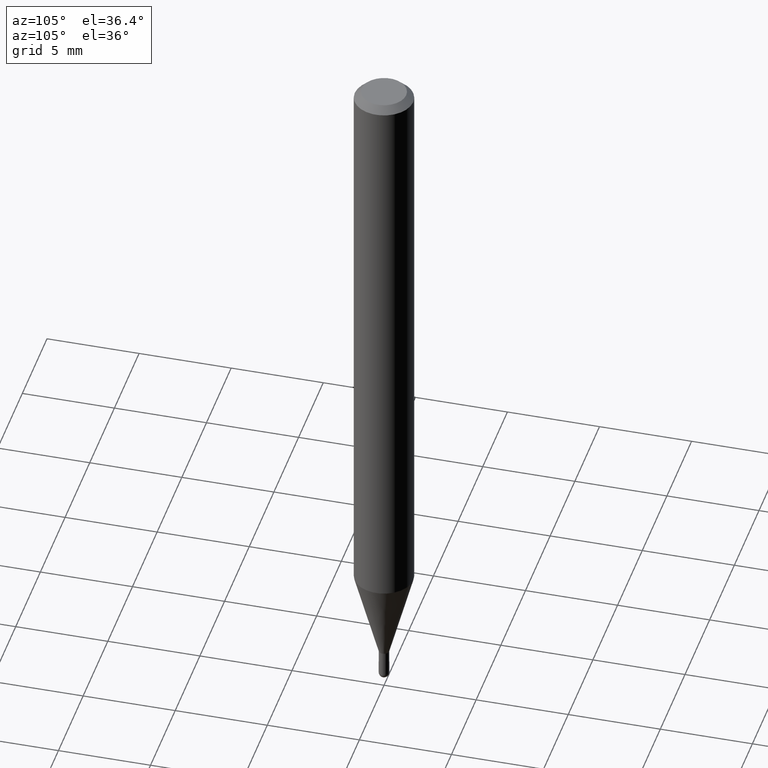
[diagram: clean part render]
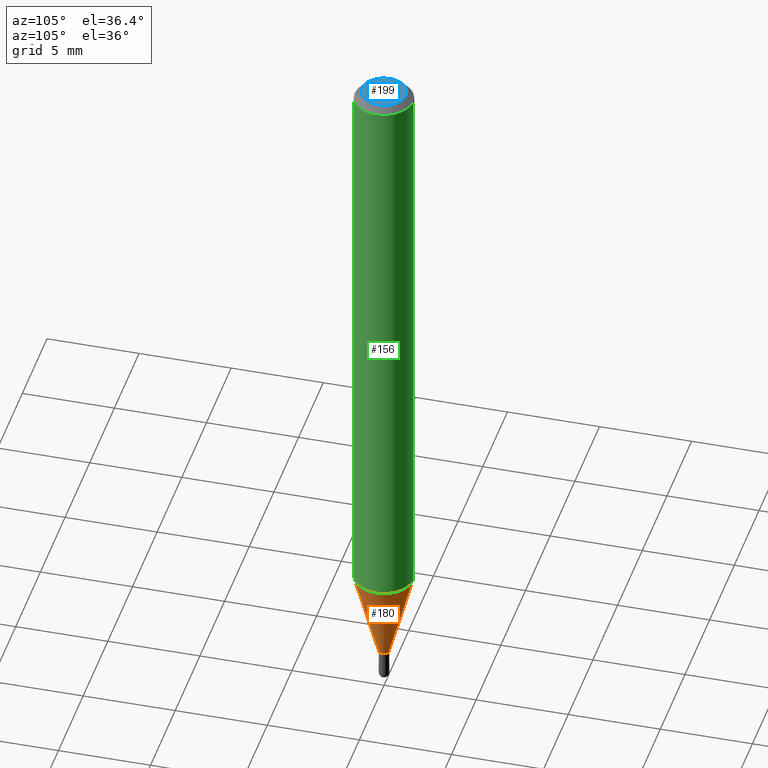
[diagram: same view with three faces highlighted in distinct colors, each labeled with its STEP entity id]
A machine part, auxiliary view with three faces highlighted in distinct colors.
Their STEP definitions:

[orange] entity #180 — the highlighted conical surface has half-angle 15 deg.
#31 = DIRECTION ( 'NONE',  ( -6.982962677686265922E-15, -1.000000000000000000, 0.000000000000000000 ) ) ;
#43 = DIRECTION ( 'NONE',  ( -6.982962677686265922E-15, -1.000000000000000000, 0.000000000000000000 ) ) ;
#51 = EDGE_CURVE ( 'NONE', #165, #355, #445, .T. ) ;
#64 = AXIS2_PLACEMENT_3D ( 'NONE', #466, #510, #31 ) ;
#68 = ORIENTED_EDGE ( 'NONE', *, *, #321, .F. ) ;
#70 = CARTESIAN_POINT ( 'NONE',  ( -7.681258945451523121E-17, -0.01100000000000520353, -1.434000000000000163 ) ) ;
#73 = AXIS2_PLACEMENT_3D ( 'NONE', #471, #390, #155 ) ;
#81 = DIRECTION ( 'NONE',  ( -2.445461482890762245E-29, 3.491491826217505762E-15, 1.000000000000000000 ) ) ;
#85 = EDGE_CURVE ( 'NONE', #91, #348, #420, .T. ) ;
#91 = VERTEX_POINT ( 'NONE', #70 ) ;
#139 = AXIS2_PLACEMENT_3D ( 'NONE', #344, #81, #43 ) ;
#155 = DIRECTION ( 'NONE',  ( -6.982962677686265922E-15, -1.000000000000000000, 4.370956789862821150E-15 ) ) ;
#164 = CARTESIAN_POINT ( 'NONE',  ( 7.815970093364746375E-17, 0.01099999999999519071, -1.434000000000000163 ) ) ;
#165 = VERTEX_POINT ( 'NONE', #414 ) ;
#180 = ADVANCED_FACE ( 'NONE', ( #187 ), #311, .T. ) ;
#187 = FACE_OUTER_BOUND ( 'NONE', #284, .T. ) ;
#192 = VECTOR ( 'NONE', #234, 39.37007874015748143 ) ;
#193 = LINE ( 'NONE', #164, #283 ) ;
#196 = CARTESIAN_POINT ( 'NONE',  ( 4.440892098500927901E-16, 0.06249999999999566319, -1.241799383410210122 ) ) ;
#228 = LINE ( 'NONE', #317, #192 ) ;
#234 = DIRECTION ( 'NONE',  ( -1.807323732225379838E-15, -0.2588190451025252914, 0.9659258262890670910 ) ) ;
#237 = ORIENTED_EDGE ( 'NONE', *, *, #85, .T. ) ;
#283 = VECTOR ( 'NONE', #349, 39.37007874015748854 ) ;
#284 = EDGE_LOOP ( 'NONE', ( #237, #396, #485, #68 ) ) ;
#311 = CONICAL_SURFACE ( 'NONE', #139, 0.01100000000000019712, 0.2617993877991576235 ) ;
#315 = EDGE_CURVE ( 'NONE', #348, #355, #193, .T. ) ;
#317 = CARTESIAN_POINT ( 'NONE',  ( -7.681258945451523121E-17, -0.01100000000000520353, -1.434000000000000163 ) ) ;
#321 = EDGE_CURVE ( 'NONE', #91, #165, #228, .T. ) ;
#344 = CARTESIAN_POINT ( 'NONE',  ( 3.506791766465352744E-29, -5.006799278795903380E-15, -1.434000000000000163 ) ) ;
#348 = VERTEX_POINT ( 'NONE', #439 ) ;
#349 = DIRECTION ( 'NONE',  ( 1.839019923739650408E-15, 0.2588190451025320082, 0.9659258262890650926 ) ) ;
#355 = VERTEX_POINT ( 'NONE', #196 ) ;
#390 = DIRECTION ( 'NONE',  ( -2.445461482890762245E-29, 3.491491826217505762E-15, 1.000000000000000000 ) ) ;
#396 = ORIENTED_EDGE ( 'NONE', *, *, #315, .T. ) ;
#414 = CARTESIAN_POINT ( 'NONE',  ( -4.364351673553612983E-16, -0.06250000000000434375, -1.241799383410209678 ) ) ;
#420 = CIRCLE ( 'NONE', #64, 0.01100000000000019712 ) ;
#439 = CARTESIAN_POINT ( 'NONE',  ( 2.611244553918704289E-16, 0.01099999999999519071, -1.434000000000000163 ) ) ;
#445 = CIRCLE ( 'NONE', #73, 0.06250000000000000000 ) ;
#466 = CARTESIAN_POINT ( 'NONE',  ( 3.506791766465352744E-29, -5.006799278795903380E-15, -1.434000000000000163 ) ) ;
#471 = CARTESIAN_POINT ( 'NONE',  ( 3.036772561607166084E-29, -4.335732396978686706E-15, -1.241799383410209900 ) ) ;
#485 = ORIENTED_EDGE ( 'NONE', *, *, #51, .F. ) ;
#510 = DIRECTION ( 'NONE',  ( -2.445461482890762245E-29, 3.491491826217505762E-15, 1.000000000000000000 ) ) ;

[blue] entity #199 — the highlighted planar face has unit normal (0, -0, -1).
#14 = ORIENTED_EDGE ( 'NONE', *, *, #27, .T. ) ;
#27 = EDGE_CURVE ( 'NONE', #274, #248, #282, .T. ) ;
#75 = DIRECTION ( 'NONE',  ( -2.445461482890762245E-29, 3.491491826217505762E-15, 1.000000000000000000 ) ) ;
#93 = EDGE_CURVE ( 'NONE', #248, #274, #297, .T. ) ;
#128 = CARTESIAN_POINT ( 'NONE',  ( 1.601770812881372317E-45, -2.286917925216366942E-31, -6.549973590211409357E-17 ) ) ;
#130 = ORIENTED_EDGE ( 'NONE', *, *, #93, .T. ) ;
#137 = AXIS2_PLACEMENT_3D ( 'NONE', #128, #205, #290 ) ;
#149 = EDGE_LOOP ( 'NONE', ( #14, #130 ) ) ;
#157 = CARTESIAN_POINT ( 'NONE',  ( 3.840629472727447874E-16, 0.04749999999999999362, -2.313455976474456035E-16 ) ) ;
#199 = ADVANCED_FACE ( 'NONE', ( #313 ), #271, .F. ) ;
#205 = DIRECTION ( 'NONE',  ( -2.445461482890762245E-29, 3.491491826217505762E-15, 1.000000000000000000 ) ) ;
#248 = VERTEX_POINT ( 'NONE', #267 ) ;
#261 = AXIS2_PLACEMENT_3D ( 'NONE', #385, #386, #512 ) ;
#267 = CARTESIAN_POINT ( 'NONE',  ( -3.773273898774340269E-16, -0.04749999999999999362, 1.003461258432174163E-16 ) ) ;
#271 = PLANE ( 'NONE',  #261 ) ;
#274 = VERTEX_POINT ( 'NONE', #157 ) ;
#282 = CIRCLE ( 'NONE', #469, 0.04749999999999999362 ) ;
#290 = DIRECTION ( 'NONE',  ( -6.982962677686266711E-15, -1.000000000000000000, 3.491491826217505762E-15 ) ) ;
#297 = CIRCLE ( 'NONE', #137, 0.04749999999999999362 ) ;
#313 = FACE_OUTER_BOUND ( 'NONE', #149, .T. ) ;
#385 = CARTESIAN_POINT ( 'NONE',  ( 3.316907271900976096E-16, 0.04749999999999999362, -1.985957296963885567E-16 ) ) ;
#386 = DIRECTION ( 'NONE',  ( 2.445461482890761965E-29, -3.491491826217505762E-15, -1.000000000000000000 ) ) ;
#469 = AXIS2_PLACEMENT_3D ( 'NONE', #503, #75, #505 ) ;
#503 = CARTESIAN_POINT ( 'NONE',  ( 1.601770812881372317E-45, -2.286917925216366942E-31, -6.549973590211409357E-17 ) ) ;
#505 = DIRECTION ( 'NONE',  ( -6.982962677686266711E-15, -1.000000000000000000, 3.491491826217505762E-15 ) ) ;
#512 = DIRECTION ( 'NONE',  ( 6.982962677686265922E-15, 1.000000000000000000, -3.491491826217505762E-15 ) ) ;

[green] entity #156 — the highlighted cylindrical surface (edge-blend (fillet) strip) has radius 1.5875 mm, axis along (-0, 0, 1).
#15 = DIRECTION ( 'NONE',  ( -6.982962677686265922E-15, -1.000000000000000000, 3.491491826217505762E-15 ) ) ;
#19 = VERTEX_POINT ( 'NONE', #498 ) ;
#34 = DIRECTION ( 'NONE',  ( -2.445461482890761965E-29, 3.491491826217505762E-15, 1.000000000000000000 ) ) ;
#40 = CIRCLE ( 'NONE', #204, 0.06250000000000000000 ) ;
#41 = DIRECTION ( 'NONE',  ( -2.445461482890762245E-29, 3.491491826217505762E-15, 1.000000000000000000 ) ) ;
#51 = EDGE_CURVE ( 'NONE', #165, #355, #445, .T. ) ;
#73 = AXIS2_PLACEMENT_3D ( 'NONE', #471, #390, #155 ) ;
#79 = FACE_OUTER_BOUND ( 'NONE', #365, .T. ) ;
#82 = VECTOR ( 'NONE', #166, 39.37007874015748143 ) ;
#111 = CARTESIAN_POINT ( 'NONE',  ( -4.364351673553916201E-16, -0.06250000000000000000, 2.182182391385941101E-16 ) ) ;
#121 = LINE ( 'NONE', #111, #328 ) ;
#140 = CARTESIAN_POINT ( 'NONE',  ( 4.440892098500625669E-16, 0.06250000000000000000, -2.182182391385941101E-16 ) ) ;
#155 = DIRECTION ( 'NONE',  ( -6.982962677686265922E-15, -1.000000000000000000, 4.370956789862821150E-15 ) ) ;
#156 = ADVANCED_FACE ( 'NONE', ( #79 ), #351, .T. ) ;
#165 = VERTEX_POINT ( 'NONE', #414 ) ;
#166 = DIRECTION ( 'NONE',  ( -2.445461482890761965E-29, 3.491491826217505762E-15, 1.000000000000000000 ) ) ;
#167 = EDGE_CURVE ( 'NONE', #239, #19, #40, .T. ) ;
#195 = EDGE_CURVE ( 'NONE', #165, #239, #121, .T. ) ;
#196 = CARTESIAN_POINT ( 'NONE',  ( 4.440892098500927901E-16, 0.06249999999999566319, -1.241799383410210122 ) ) ;
#201 = DIRECTION ( 'NONE',  ( -2.445461482890762245E-29, 3.491491826217505762E-15, 1.000000000000000000 ) ) ;
#202 = ORIENTED_EDGE ( 'NONE', *, *, #418, .T. ) ;
#204 = AXIS2_PLACEMENT_3D ( 'NONE', #408, #41, #436 ) ;
#239 = VERTEX_POINT ( 'NONE', #437 ) ;
#320 = LINE ( 'NONE', #140, #82 ) ;
#328 = VECTOR ( 'NONE', #34, 39.37007874015748143 ) ;
#351 = CYLINDRICAL_SURFACE ( 'NONE', #461, 0.06250000000000000000 ) ;
#355 = VERTEX_POINT ( 'NONE', #196 ) ;
#363 = ORIENTED_EDGE ( 'NONE', *, *, #51, .T. ) ;
#365 = EDGE_LOOP ( 'NONE', ( #363, #202, #451, #480 ) ) ;
#390 = DIRECTION ( 'NONE',  ( -2.445461482890762245E-29, 3.491491826217505762E-15, 1.000000000000000000 ) ) ;
#408 = CARTESIAN_POINT ( 'NONE',  ( 3.668192224336159377E-31, -5.237237739326281594E-17, -0.01500000000000006710 ) ) ;
#414 = CARTESIAN_POINT ( 'NONE',  ( -4.364351673553612983E-16, -0.06250000000000434375, -1.241799383410209678 ) ) ;
#418 = EDGE_CURVE ( 'NONE', #355, #19, #320, .T. ) ;
#433 = CARTESIAN_POINT ( 'NONE',  ( 0.000000000000000000, 0.000000000000000000, 0.000000000000000000 ) ) ;
#436 = DIRECTION ( 'NONE',  ( -6.982962677686265922E-15, -1.000000000000000000, 3.483106191921935554E-15 ) ) ;
#437 = CARTESIAN_POINT ( 'NONE',  ( -4.364351673553912750E-16, -0.06250000000000005551, -0.01499999999999984852 ) ) ;
#445 = CIRCLE ( 'NONE', #73, 0.06250000000000000000 ) ;
#451 = ORIENTED_EDGE ( 'NONE', *, *, #167, .F. ) ;
#461 = AXIS2_PLACEMENT_3D ( 'NONE', #433, #201, #15 ) ;
#471 = CARTESIAN_POINT ( 'NONE',  ( 3.036772561607166084E-29, -4.335732396978686706E-15, -1.241799383410209900 ) ) ;
#480 = ORIENTED_EDGE ( 'NONE', *, *, #195, .F. ) ;
#498 = CARTESIAN_POINT ( 'NONE',  ( 4.440892098500930859E-16, 0.06249999999999993755, -0.01500000000000028394 ) ) ;